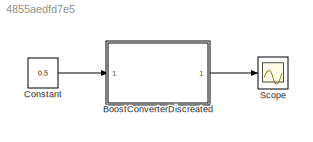
MODEL slx_4855aedfd7e5
KIND model
CONFIG AbsTol = auto
CONFIG EnableMultiTasking = off
CONFIG FixedStep = auto
CONFIG MaxStep = auto
CONFIG MinStep = auto
CONFIG RelTol = 1e-3
CONFIG SampleTimeConstraint = Unconstrained
CONFIG Solver = ode15s
CONFIG SolverName = ode15s
CONFIG StartTime = 0.0
CONFIG StopTime = 0.05
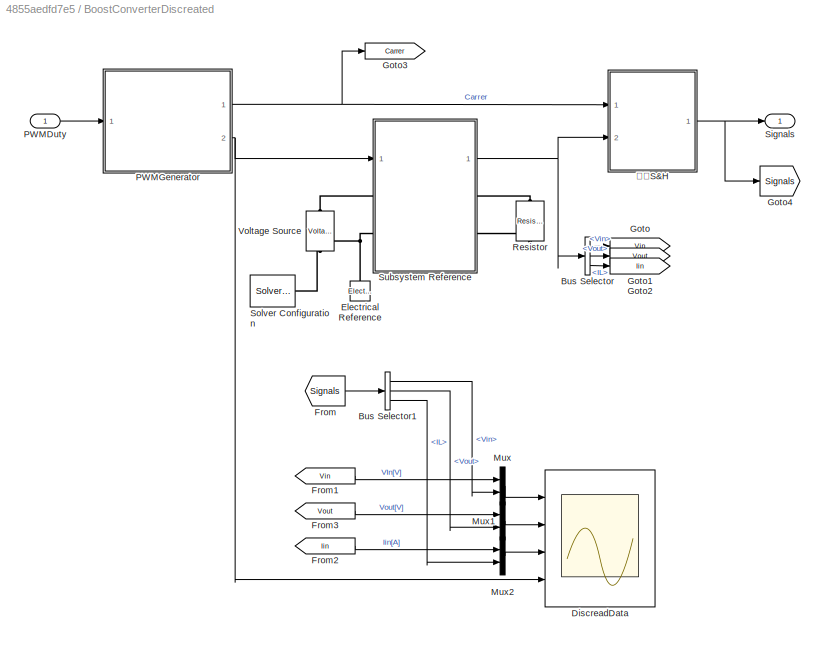
BLOCK [SubSystem] BoostConverterDiscreated
  Ports = [1, 1]
  RequestExecContextInheritance = off
BLOCK [BusSelector] BoostConverterDiscreated/Bus Selector
  OutputSignals = Vin,Vout,IL
  Ports = [1, 3]
BLOCK [BusSelector] BoostConverterDiscreated/Bus Selector1
  OutputSignals = Vin,Vout,IL
  Ports = [1, 3]
BLOCK [Scope] BoostConverterDiscreated/DiscreadData
  Floating = off
  NumInputPorts = 4
  Ports = [4]
  ScopeSpecificationString = Simulink.scopes.TimeScopeBlockCfg('CurrentConfiguration', extmgr.ConfigurationSet(extmgr.Configuration('Core','General UI',true,'FigureColor',[1 1 1]),extmgr.Configuration('Core','Source UI',true),extmgr.Configuration('Sources','WiredSimulink',true,'DataLoggingVariableName','ScopeData4'),extmgr.Configuration('Visuals','Time Domain',true,'SerializedDisplays',{struct('MinYLimReal','90.00000','MaxYLi...<+5188ch>
BLOCK [Reference] BoostConverterDiscreated/Electrical Reference  REF=fl_lib/Electrical/Electrical Elements/Electrical Reference
  NameLocation = right
  Ports = [0, 0, 0, 0, 0, 1]
  SourceBlock = fl_lib/Electrical/Electrical Elements/Electrical Reference
  SourceProductBaseCode = SS
  SourceType = Electrical Reference
BLOCK [From] BoostConverterDiscreated/From
  GotoTag = Signals
BLOCK [From] BoostConverterDiscreated/From1
  GotoTag = Vin
BLOCK [From] BoostConverterDiscreated/From2
  GotoTag = Iin
BLOCK [From] BoostConverterDiscreated/From3
  GotoTag = Vout
BLOCK [Goto] BoostConverterDiscreated/Goto
  GotoTag = Vin
BLOCK [Goto] BoostConverterDiscreated/Goto1
  GotoTag = Vout
BLOCK [Goto] BoostConverterDiscreated/Goto2
  GotoTag = Iin
BLOCK [Goto] BoostConverterDiscreated/Goto3
  GotoTag = Carrer
BLOCK [Goto] BoostConverterDiscreated/Goto4
  GotoTag = Signals
BLOCK [Mux] BoostConverterDiscreated/Mux
  DisplayOption = bar
  Inputs = 2
  Ports = [2, 1]
BLOCK [Mux] BoostConverterDiscreated/Mux1
  DisplayOption = bar
  Inputs = 2
  Ports = [2, 1]
BLOCK [Mux] BoostConverterDiscreated/Mux2
  DisplayOption = bar
  Inputs = 2
  Ports = [2, 1]
BLOCK [Inport] BoostConverterDiscreated/PWMDuty
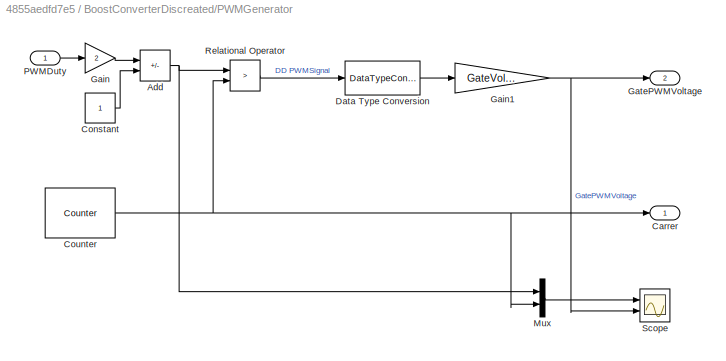
BLOCK [SubSystem] BoostConverterDiscreated/PWMGenerator
  Ports = [1, 2]
  RequestExecContextInheritance = off
BLOCK [Sum] BoostConverterDiscreated/PWMGenerator/Add
  IconShape = rectangular
  Inputs = +-
  Ports = [2, 1]
BLOCK [Outport] BoostConverterDiscreated/PWMGenerator/Carrer
BLOCK [Constant] BoostConverterDiscreated/PWMGenerator/Constant
BLOCK [Reference] BoostConverterDiscreated/PWMGenerator/Counter  REF=eeGeneralControl/Counter
  Ports = [0, 1]
  SourceBlock = eeGeneralControl/Counter
  SourceProductBaseCode = PS
  SourceType = Counter
BLOCK [DataTypeConversion] BoostConverterDiscreated/PWMGenerator/Data Type Conversion
  OutDataTypeStr = double
  RndMeth = Floor
  SaturateOnIntegerOverflow = off
BLOCK [Gain] BoostConverterDiscreated/PWMGenerator/Gain
  Gain = 2
BLOCK [Gain] BoostConverterDiscreated/PWMGenerator/Gain1
  Gain = GateVoltage
BLOCK [Outport] BoostConverterDiscreated/PWMGenerator/GatePWMVoltage
  Port = 2
BLOCK [Mux] BoostConverterDiscreated/PWMGenerator/Mux
  DisplayOption = bar
  Inputs = 2
  Ports = [2, 1]
BLOCK [Inport] BoostConverterDiscreated/PWMGenerator/PWMDuty
BLOCK [RelationalOperator] BoostConverterDiscreated/PWMGenerator/Relational Operator
  InputSameDT = off
  Operator = >
  OutDataTypeStr = boolean
  Ports = [2, 1]
  RndMeth = Simplest
BLOCK [Scope] BoostConverterDiscreated/PWMGenerator/Scope
  Floating = off
  NumInputPorts = 2
  Ports = [2]
  ScopeSpecificationString = Simulink.scopes.TimeScopeBlockCfg('CurrentConfiguration', extmgr.ConfigurationSet(extmgr.Configuration('Core','General UI',true),extmgr.Configuration('Core','Source UI',true),extmgr.Configuration('Sources','WiredSimulink',true,'DataLoggingVariableName','ScopeData2'),extmgr.Configuration('Visuals','Time Domain',true,'SerializedDisplays',{struct('MinYLimReal','-1.25','MaxYLimReal','1.25','YLabelReal...<+2399ch>
BLOCK [Reference] BoostConverterDiscreated/Resistor  REF=ee_lib/Passive/Resistor
  NameLocation = left
  Ports = [0, 0, 0, 0, 0, 1, 1]
  SourceBlock = ee_lib/Passive/Resistor
  SourceProductBaseCode = PS
  SourceType = Resistor
BLOCK [Outport] BoostConverterDiscreated/Signals
BLOCK [Reference] BoostConverterDiscreated/Solver Configuration  REF=nesl_utility/Solver
Configuration
  Ports = [0, 0, 0, 0, 0, 0, 1]
  SourceBlock = nesl_utility/Solver\nConfiguration
  SourceProductBaseCode = SS
  SourceType = Solver\nConfiguration
BLOCK [SubSystem] BoostConverterDiscreated/Subsystem Reference
  Ports = [1, 1, 0, 0, 0, 2, 2]
  ReferencedSubsystem = BoostConverter
  RequestExecContextInheritance = off
BLOCK [Reference] BoostConverterDiscreated/Voltage Source  REF=ee_lib/Sources/Voltage Source
  NameLocation = left
  Ports = [0, 0, 0, 0, 0, 1, 1]
  SourceBlock = ee_lib/Sources/Voltage Source
  SourceProductBaseCode = PS
  SourceType = Voltage Source
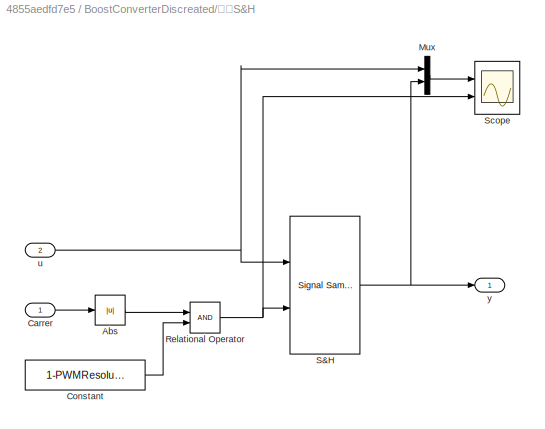
BLOCK [SubSystem] BoostConverterDiscreated/山谷S&H
  Ports = [2, 1]
  RequestExecContextInheritance = off
BLOCK [Abs] BoostConverterDiscreated/山谷S&H/Abs
  SaturateOnIntegerOverflow = off
BLOCK [Inport] BoostConverterDiscreated/山谷S&H/Carrer
BLOCK [Constant] BoostConverterDiscreated/山谷S&H/Constant
  Value = 1-PWMResolution
BLOCK [Mux] BoostConverterDiscreated/山谷S&H/Mux
  Commented = on
  DisplayOption = bar
  Inputs = 2
  Ports = [2, 1]
BLOCK [RelationalOperator] BoostConverterDiscreated/山谷S&H/Relational Operator
  InputSameDT = off
  OutDataTypeStr = boolean
  Ports = [2, 1]
  RndMeth = Simplest
  ZeroCross = off
BLOCK [Reference] BoostConverterDiscreated/山谷S&H/S&H  REF=eeGeneralControl/Signal Sample and Hold
  Ports = [2, 1]
  SourceBlock = eeGeneralControl/Signal Sample and Hold
  SourceProductBaseCode = PS
  SourceType = Signal Sample-and-Hold
BLOCK [Scope] BoostConverterDiscreated/山谷S&H/Scope
  Commented = on
  Floating = off
  NumInputPorts = 2
  Ports = [2]
  ScopeSpecificationString = Simulink.scopes.TimeScopeBlockCfg('CurrentConfiguration', extmgr.ConfigurationSet(extmgr.Configuration('Core','General UI',true),extmgr.Configuration('Core','Source UI',true),extmgr.Configuration('Sources','WiredSimulink',true,'DataLoggingVariableName','ScopeData3'),extmgr.Configuration('Visuals','Time Domain',true,'SerializedDisplays',{struct('MinYLimReal','-36.93961','MaxYLimReal','304.92881','Y...<+2046ch>
BLOCK [Inport] BoostConverterDiscreated/山谷S&H/u
  Port = 2
BLOCK [Outport] BoostConverterDiscreated/山谷S&H/y
BLOCK [Constant] Constant
  Value = 0.5
BLOCK [Scope] Scope
  Floating = off
  NumInputPorts = 1
  Ports = [1]
  ScopeSpecificationString = Simulink.scopes.TimeScopeBlockCfg('CurrentConfiguration', extmgr.ConfigurationSet(extmgr.Configuration('Core','General UI',true),extmgr.Configuration('Core','Source UI',true),extmgr.Configuration('Sources','WiredSimulink',true),extmgr.Configuration('Visuals','Time Domain',true,'SerializedDisplays',{struct('MinYLimReal','-31.8129','MaxYLimReal','286.31607','YLabelReal','','MinYLimMag','0.00000','Ma...<+1448ch>
LINE BoostConverterDiscreated/Bus Selector1:1 -> BoostConverterDiscreated/Mux:2
LINE BoostConverterDiscreated/Bus Selector1:2 -> BoostConverterDiscreated/Mux1:2
LINE BoostConverterDiscreated/Bus Selector1:3 -> BoostConverterDiscreated/Mux2:2
LINE BoostConverterDiscreated/Bus Selector:1 -> BoostConverterDiscreated/Goto:1
LINE BoostConverterDiscreated/Bus Selector:2 -> BoostConverterDiscreated/Goto1:1
LINE BoostConverterDiscreated/Bus Selector:3 -> BoostConverterDiscreated/Goto2:1
LINE BoostConverterDiscreated/From1:1 -> BoostConverterDiscreated/Mux:1
LINE BoostConverterDiscreated/From2:1 -> BoostConverterDiscreated/Mux2:1
LINE BoostConverterDiscreated/From3:1 -> BoostConverterDiscreated/Mux1:1
LINE BoostConverterDiscreated/From:1 -> BoostConverterDiscreated/Bus Selector1:1
LINE BoostConverterDiscreated/Mux1:1 -> BoostConverterDiscreated/DiscreadData:2
LINE BoostConverterDiscreated/Mux2:1 -> BoostConverterDiscreated/DiscreadData:3
LINE BoostConverterDiscreated/Mux:1 -> BoostConverterDiscreated/DiscreadData:1
LINE BoostConverterDiscreated/PWMDuty:1 -> BoostConverterDiscreated/PWMGenerator:1
NET BoostConverterDiscreated/PWMGenerator/Add:1 -> BoostConverterDiscreated/PWMGenerator/Mux:1, BoostConverterDiscreated/PWMGenerator/Relational Operator:1
LINE BoostConverterDiscreated/PWMGenerator/Constant:1 -> BoostConverterDiscreated/PWMGenerator/Add:2
NET BoostConverterDiscreated/PWMGenerator/Counter:1 -> BoostConverterDiscreated/PWMGenerator/Carrer:1, BoostConverterDiscreated/PWMGenerator/Mux:2, BoostConverterDiscreated/PWMGenerator/Relational Operator:2
LINE BoostConverterDiscreated/PWMGenerator/Data Type Conversion:1 -> BoostConverterDiscreated/PWMGenerator/Gain1:1
NET BoostConverterDiscreated/PWMGenerator/Gain1:1 -> BoostConverterDiscreated/PWMGenerator/GatePWMVoltage:1, BoostConverterDiscreated/PWMGenerator/Scope:2
LINE BoostConverterDiscreated/PWMGenerator/Gain:1 -> BoostConverterDiscreated/PWMGenerator/Add:1
LINE BoostConverterDiscreated/PWMGenerator/Mux:1 -> BoostConverterDiscreated/PWMGenerator/Scope:1
LINE BoostConverterDiscreated/PWMGenerator/PWMDuty:1 -> BoostConverterDiscreated/PWMGenerator/Gain:1
LINE BoostConverterDiscreated/PWMGenerator/Relational Operator:1 -> BoostConverterDiscreated/PWMGenerator/Data Type Conversion:1
NET BoostConverterDiscreated/PWMGenerator:1 -> BoostConverterDiscreated/Goto3:1, BoostConverterDiscreated/山谷S&H:1
NET BoostConverterDiscreated/PWMGenerator:2 -> BoostConverterDiscreated/DiscreadData:4, BoostConverterDiscreated/Subsystem Reference:1
NET BoostConverterDiscreated/Subsystem Reference:1 -> BoostConverterDiscreated/Bus Selector:1, BoostConverterDiscreated/山谷S&H:2
LINE BoostConverterDiscreated/山谷S&H/Abs:1 -> BoostConverterDiscreated/山谷S&H/Relational Operator:1
LINE BoostConverterDiscreated/山谷S&H/Carrer:1 -> BoostConverterDiscreated/山谷S&H/Abs:1
LINE BoostConverterDiscreated/山谷S&H/Constant:1 -> BoostConverterDiscreated/山谷S&H/Relational Operator:2
LINE BoostConverterDiscreated/山谷S&H/Mux:1 -> BoostConverterDiscreated/山谷S&H/Scope:1
NET BoostConverterDiscreated/山谷S&H/Relational Operator:1 -> BoostConverterDiscreated/山谷S&H/S&H:2, BoostConverterDiscreated/山谷S&H/Scope:2
NET BoostConverterDiscreated/山谷S&H/S&H:1 -> BoostConverterDiscreated/山谷S&H/Mux:2, BoostConverterDiscreated/山谷S&H/y:1
NET BoostConverterDiscreated/山谷S&H/u:1 -> BoostConverterDiscreated/山谷S&H/Mux:1, BoostConverterDiscreated/山谷S&H/S&H:1
NET BoostConverterDiscreated/山谷S&H:1 -> BoostConverterDiscreated/Goto4:1, BoostConverterDiscreated/Signals:1
LINE BoostConverterDiscreated:1 -> Scope:1
LINE Constant:1 -> BoostConverterDiscreated:1
PNET net1: BoostConverterDiscreated/Electrical Reference:LConn1 -- BoostConverterDiscreated/Solver Configuration:RConn1 -- BoostConverterDiscreated/Subsystem Reference:LConn2 -- BoostConverterDiscreated/Voltage Source:RConn1
PLINE BoostConverterDiscreated/Resistor:LConn1 -- BoostConverterDiscreated/Subsystem Reference:RConn1
PLINE BoostConverterDiscreated/Resistor:RConn1 -- BoostConverterDiscreated/Subsystem Reference:RConn2
PLINE BoostConverterDiscreated/Subsystem Reference:LConn1 -- BoostConverterDiscreated/Voltage Source:LConn1
note: NET lines group one-source signal fan-out (src -> all destinations, sorted); 1:1 wires keep LINE; PNET lines group multi-terminal physical nets as a canonical sorted terminal list (undirected conserving connections); 2-terminal nets keep the pairwise PLINE form
